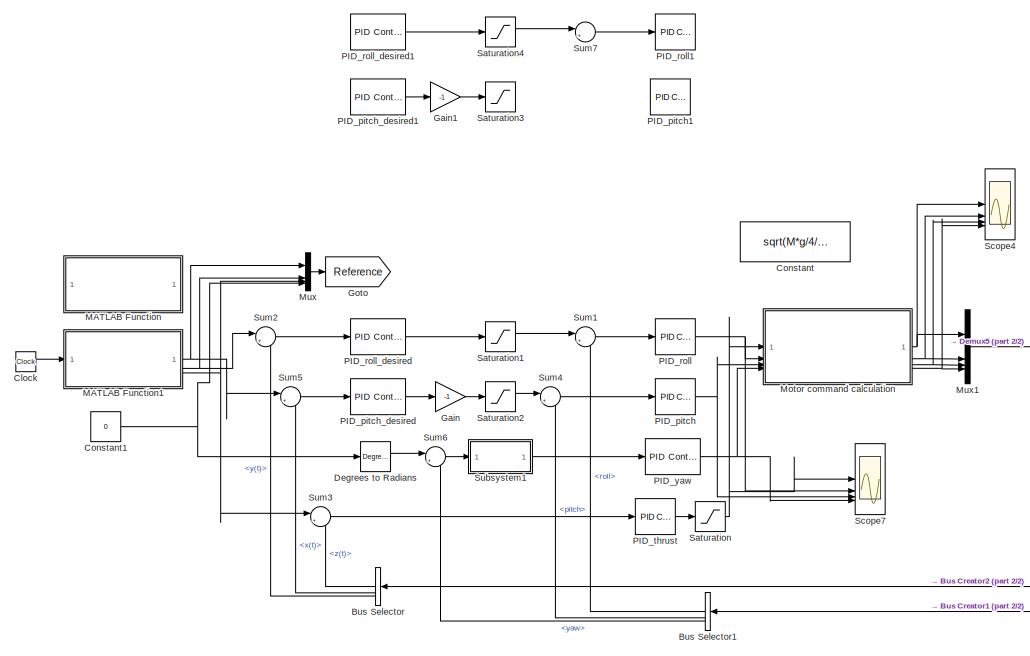
[diagram: root canvas - part 1/2, left side, full height]
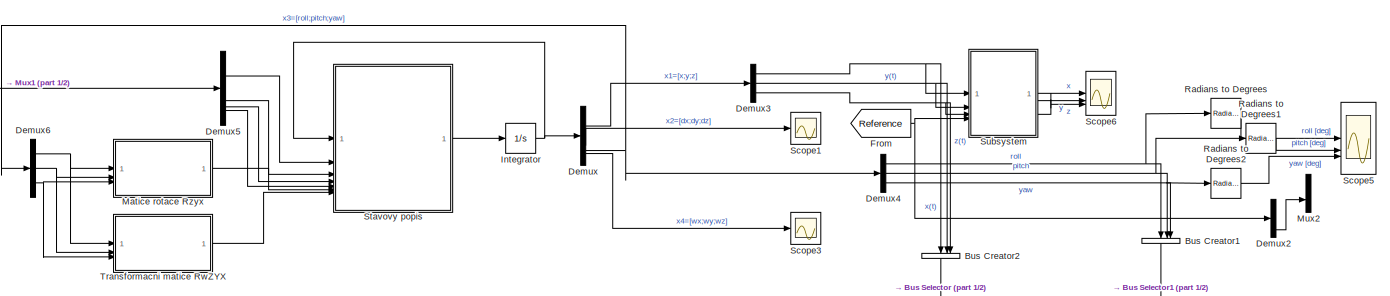
[diagram: root canvas - part 2/2, middle right region]
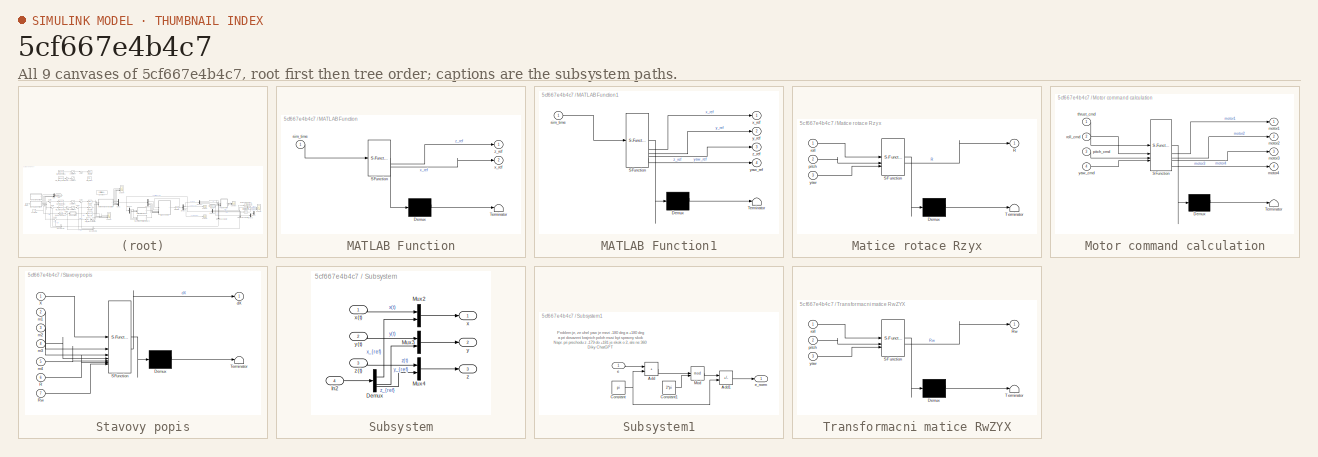
[diagram: thumbnail index - all 9 canvases of the model, root first then tree order]
MODEL slx_5cf667e4b4c7
KIND model
CONFIG AbsTol = auto
CONFIG EnableMultiTasking = off
CONFIG FixedStep = 0.01
CONFIG MaxStep = auto
CONFIG MinStep = auto
CONFIG RelTol = 1e-3
CONFIG SampleTimeConstraint = Unconstrained
CONFIG SolverName = ode4
CONFIG StartTime = 0.0
CONFIG StopTime = 40
BLOCK [BusCreator] Bus Creator1
  DisplayOption = bar
  InheritFromInputs = on
  Inputs = 3
  NameLocation = left
BLOCK [BusCreator] Bus Creator2
  DisplayOption = bar
  InheritFromInputs = on
  Inputs = 3
  NameLocation = left
BLOCK [BusSelector] Bus Selector
  NameLocation = top
  OutputSignals = z(t),x(t),y(t)
BLOCK [BusSelector] Bus Selector1
  NameLocation = left
  OutputSignals = roll,pitch,yaw
BLOCK [Clock] Clock
BLOCK [Constant] Constant
  Commented = on
  Value = sqrt(M*g/4/k_thrust)
BLOCK [Constant] Constant1
  Value = 0
BLOCK [Reference] Degrees to Radians  REF=simulink_extras/Transformations/Degrees to
Radians
  SourceBlock = simulink_extras/Transformations/Degrees to\nRadians
  SourceType = DegreesToRadians
BLOCK [Demux] Demux
BLOCK [Demux] Demux2
BLOCK [Demux] Demux3
  Outputs = 3
BLOCK [Demux] Demux4
  Outputs = 3
BLOCK [Demux] Demux5
BLOCK [Demux] Demux6
  Outputs = 3
BLOCK [From] From
  GotoTag = Reference
BLOCK [Gain] Gain
  Gain = -1
BLOCK [Gain] Gain1
  Commented = on
  Gain = -1
BLOCK [Goto] Goto
  GotoTag = Reference
BLOCK [Integrator] Integrator
  InitialCondition = Xinit
BLOCK [SubSystem] MATLAB Function
  Commented = on
  ErrorFcn = Stateflow.Translate.translate
  PermitHierarchicalResolution = ExplicitOnly
  SFBlockType = MATLAB Function
  TreatAsAtomicUnit = on
BLOCK [Demux] MATLAB Function/ Demux 
  Outputs = 1
BLOCK [S-Function] MATLAB Function/ SFunction 
  EnableBusSupport = on
  FunctionName = sf_sfun
  PortCounts = [1 3]
  SFcnIsStateOwnerBlock = off
  SFunctionDeploymentMode = off
  Tag = Stateflow S-Function 4
BLOCK [Terminator] MATLAB Function/ Terminator 
BLOCK [Inport] MATLAB Function/sim_time
BLOCK [Outport] MATLAB Function/x_ref
  Port = 2
BLOCK [Outport] MATLAB Function/z_ref
BLOCK [SubSystem] MATLAB Function1
  ErrorFcn = Stateflow.Translate.translate
  PermitHierarchicalResolution = ExplicitOnly
  SFBlockType = MATLAB Function
  TreatAsAtomicUnit = on
BLOCK [Demux] MATLAB Function1/ Demux 
  Outputs = 1
BLOCK [S-Function] MATLAB Function1/ SFunction 
  EnableBusSupport = on
  FunctionName = sf_sfun
  PortCounts = [1 5]
  SFcnIsStateOwnerBlock = off
  SFunctionDeploymentMode = off
  Tag = Stateflow S-Function 5
BLOCK [Terminator] MATLAB Function1/ Terminator 
BLOCK [Inport] MATLAB Function1/sim_time
BLOCK [Outport] MATLAB Function1/x_ref
BLOCK [Outport] MATLAB Function1/y_ref
  Port = 2
BLOCK [Outport] MATLAB Function1/yaw_ref
  Port = 4
BLOCK [Outport] MATLAB Function1/z_ref
  Port = 3
BLOCK [SubSystem] Matice rotace Rzyx
  ErrorFcn = Stateflow.Translate.translate
  PermitHierarchicalResolution = ExplicitOnly
  SFBlockType = MATLAB Function
  TreatAsAtomicUnit = on
BLOCK [Demux] Matice rotace Rzyx/ Demux 
  Outputs = 1
BLOCK [S-Function] Matice rotace Rzyx/ SFunction 
  EnableBusSupport = on
  FunctionName = sf_sfun
  PortCounts = [3 2]
  SFcnIsStateOwnerBlock = off
  SFunctionDeploymentMode = off
  Tag = Stateflow S-Function 1
BLOCK [Terminator] Matice rotace Rzyx/ Terminator 
BLOCK [Outport] Matice rotace Rzyx/R
BLOCK [Inport] Matice rotace Rzyx/pitch
  Port = 2
BLOCK [Inport] Matice rotace Rzyx/roll
BLOCK [Inport] Matice rotace Rzyx/yaw
  Port = 3
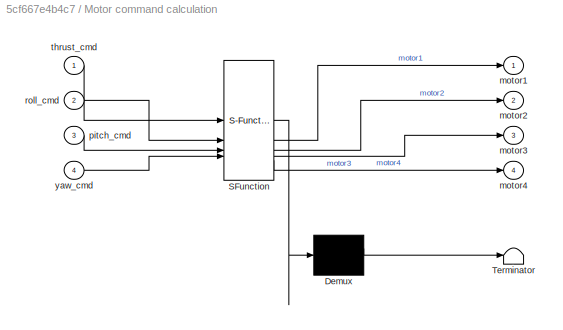
BLOCK [SubSystem] Motor command calculation
  ErrorFcn = Stateflow.Translate.translate
  PermitHierarchicalResolution = ExplicitOnly
  SFBlockType = MATLAB Function
  TreatAsAtomicUnit = on
BLOCK [Demux] Motor command calculation/ Demux 
  Outputs = 1
BLOCK [S-Function] Motor command calculation/ SFunction 
  EnableBusSupport = on
  FunctionName = sf_sfun
  PortCounts = [4 5]
  SFcnIsStateOwnerBlock = off
  SFunctionDeploymentMode = off
  Tag = Stateflow S-Function 6
BLOCK [Terminator] Motor command calculation/ Terminator 
BLOCK [Outport] Motor command calculation/motor1
BLOCK [Outport] Motor command calculation/motor2
  Port = 2
BLOCK [Outport] Motor command calculation/motor3
  Port = 3
BLOCK [Outport] Motor command calculation/motor4
  Port = 4
BLOCK [Inport] Motor command calculation/pitch_cmd
  Port = 3
BLOCK [Inport] Motor command calculation/roll_cmd
  Port = 2
BLOCK [Inport] Motor command calculation/thrust_cmd
BLOCK [Inport] Motor command calculation/yaw_cmd
  Port = 4
BLOCK [Mux] Mux
  DisplayOption = bar
BLOCK [Mux] Mux1
  DisplayOption = bar
BLOCK [Mux] Mux2
  DisplayOption = bar
  Inputs = 2
BLOCK [Reference] PID_pitch  REF=slpidlib/PID Controller
  LibrarySourceBlock = simulink/Continuous/PID Controller
  SourceBlock = slpidlib/PID Controller
  SourceType = PID 1dof
BLOCK [Reference] PID_pitch1  REF=slpidlib/PID Controller
  Commented = on
  LibrarySourceBlock = simulink/Continuous/PID Controller
  SourceBlock = slpidlib/PID Controller
  SourceType = PID 1dof
BLOCK [Reference] PID_pitch_desired  REF=slpidlib/PID Controller
  LibrarySourceBlock = simulink/Continuous/PID Controller
  SourceBlock = slpidlib/PID Controller
  SourceType = PID 1dof
BLOCK [Reference] PID_pitch_desired1  REF=slpidlib/PID Controller
  Commented = on
  LibrarySourceBlock = simulink/Continuous/PID Controller
  SourceBlock = slpidlib/PID Controller
  SourceType = PID 1dof
BLOCK [Reference] PID_roll  REF=slpidlib/PID Controller
  LibrarySourceBlock = simulink/Continuous/PID Controller
  SourceBlock = slpidlib/PID Controller
  SourceType = PID 1dof
BLOCK [Reference] PID_roll1  REF=slpidlib/PID Controller
  Commented = on
  LibrarySourceBlock = simulink/Continuous/PID Controller
  SourceBlock = slpidlib/PID Controller
  SourceType = PID 1dof
BLOCK [Reference] PID_roll_desired  REF=slpidlib/PID Controller
  LibrarySourceBlock = simulink/Continuous/PID Controller
  SourceBlock = slpidlib/PID Controller
  SourceType = PID 1dof
BLOCK [Reference] PID_roll_desired1  REF=slpidlib/PID Controller
  Commented = on
  LibrarySourceBlock = simulink/Continuous/PID Controller
  SourceBlock = slpidlib/PID Controller
  SourceType = PID 1dof
BLOCK [Reference] PID_thrust  REF=slpidlib/PID Controller
  LibrarySourceBlock = simulink/Continuous/PID Controller
  SourceBlock = slpidlib/PID Controller
  SourceType = PID 1dof
BLOCK [Reference] PID_yaw  REF=slpidlib/PID Controller
  LibrarySourceBlock = simulink/Continuous/PID Controller
  SourceBlock = slpidlib/PID Controller
  SourceType = PID 1dof
BLOCK [Reference] Radians to Degrees  REF=simulink_extras/Transformations/Radians
to Degrees
  SourceBlock = simulink_extras/Transformations/Radians\nto Degrees
  SourceType = RadiansToDegrees
BLOCK [Reference] Radians to Degrees1  REF=simulink_extras/Transformations/Radians
to Degrees
  SourceBlock = simulink_extras/Transformations/Radians\nto Degrees
  SourceType = RadiansToDegrees
BLOCK [Reference] Radians to Degrees2  REF=simulink_extras/Transformations/Radians
to Degrees
  SourceBlock = simulink_extras/Transformations/Radians\nto Degrees
  SourceType = RadiansToDegrees
BLOCK [Saturate] Saturation
  LowerLimit = 0
  UpperLimit = 20
BLOCK [Saturate] Saturation1
  LowerLimit = -pi/2
  UpperLimit = pi/2
BLOCK [Saturate] Saturation2
  LowerLimit = -pi/2
  UpperLimit = pi/2
BLOCK [Saturate] Saturation3
  Commented = on
  LowerLimit = -pi/2
  UpperLimit = pi/2
BLOCK [Saturate] Saturation4
  Commented = on
  LowerLimit = -pi/2
  UpperLimit = pi/2
BLOCK [Scope] Scope1
  Floating = off
  NumInputPorts = 1
  ScopeSpecificationString = Simulink.scopes.TimeScopeBlockCfg('CurrentConfiguration', extmgr.ConfigurationSet(extmgr.Configuration('Core','General UI',true),extmgr.Configuration('Core','Source UI',true),extmgr.Configuration('Sources','WiredSimulink',true,'DataLoggingVariableName','ScopeData1'),extmgr.Configuration('Visuals','Time Domain',true,'SerializedDisplays',{struct('MinYLimReal','-22.55347','MaxYLimReal','15.97128','YL...<+1528ch>
BLOCK [Scope] Scope3
  Floating = off
  NumInputPorts = 1
  ScopeSpecificationString = Simulink.scopes.TimeScopeBlockCfg('CurrentConfiguration', extmgr.ConfigurationSet(extmgr.Configuration('Core','General UI',true),extmgr.Configuration('Core','Source UI',true),extmgr.Configuration('Sources','WiredSimulink',true,'DataLoggingVariableName','ScopeData3'),extmgr.Configuration('Visuals','Time Domain',true,'SerializedDisplays',{struct('MinYLimReal','-0.7747','MaxYLimReal','0.73167','YLabe...<+1545ch>
BLOCK [Scope] Scope4
  Floating = off
  NumInputPorts = 4
  ScopeSpecificationString = Simulink.scopes.TimeScopeBlockCfg('CurrentConfiguration', extmgr.ConfigurationSet(extmgr.Configuration('Core','General UI',true),extmgr.Configuration('Core','Source UI',true),extmgr.Configuration('Sources','WiredSimulink',true,'DataLoggingVariableName','ScopeData5'),extmgr.Configuration('Visuals','Time Domain',true,'SerializedDisplays',{struct('MinYLimReal','-2.50003','MaxYLimReal','22.50003','YLa...<+1749ch>
BLOCK [Scope] Scope5
  Floating = off
  NumInputPorts = 3
  ScopeSpecificationString = Simulink.scopes.TimeScopeBlockCfg('CurrentConfiguration', extmgr.ConfigurationSet(extmgr.Configuration('Core','General UI',true),extmgr.Configuration('Core','Source UI',true),extmgr.Configuration('Sources','WiredSimulink',true,'DataLoggingVariableName','ScopeData6'),extmgr.Configuration('Visuals','Time Domain',true,'PlotType','Stairs','SerializedDisplays',{struct('MinYLimReal','-75.25604','MaxYLim...<+1647ch>
BLOCK [Scope] Scope6
  Floating = off
  NumInputPorts = 3
  ScopeSpecificationString = Simulink.scopes.TimeScopeBlockCfg('CurrentConfiguration', extmgr.ConfigurationSet(extmgr.Configuration('Core','General UI',true,'FigureColor',[0 0 0]),extmgr.Configuration('Core','Source UI',true),extmgr.Configuration('Sources','WiredSimulink',true,'DataLoggingVariableName','ScopeData7'),extmgr.Configuration('Visuals','Time Domain',true,'PlotType','Stairs','SerializedDisplays',{struct('MinYLimReal...<+3511ch>
BLOCK [Scope] Scope7
  Floating = off
  NumInputPorts = 4
  ScopeSpecificationString = Simulink.scopes.TimeScopeBlockCfg('CurrentConfiguration', extmgr.ConfigurationSet(extmgr.Configuration('Core','General UI',true),extmgr.Configuration('Core','Source UI',true),extmgr.Configuration('Sources','WiredSimulink',true,'DataLoggingVariableName','ScopeData8'),extmgr.Configuration('Visuals','Time Domain',true,'SerializedDisplays',{struct('MinYLimReal','-2.50002','MaxYLimReal','22.5','YLabelR...<+1639ch>
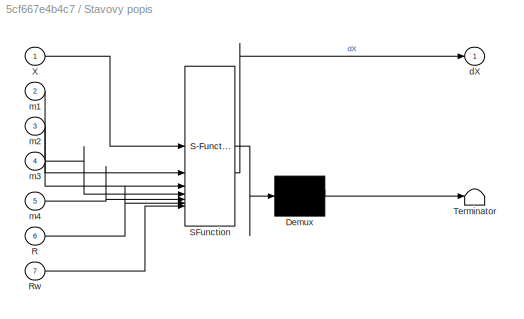
BLOCK [SubSystem] Stavovy popis
  ErrorFcn = Stateflow.Translate.translate
  PermitHierarchicalResolution = ExplicitOnly
  SFBlockType = MATLAB Function
  TreatAsAtomicUnit = on
BLOCK [Demux] Stavovy popis/ Demux 
  Outputs = 1
BLOCK [S-Function] Stavovy popis/ SFunction 
  EnableBusSupport = on
  FunctionName = sf_sfun
  Parameters = I,L,M,b_moment,g,k,k_thrust
  PortCounts = [7 2]
  SFcnIsStateOwnerBlock = off
  SFunctionDeploymentMode = off
  Tag = Stateflow S-Function 2
BLOCK [Terminator] Stavovy popis/ Terminator 
BLOCK [Inport] Stavovy popis/R
  Port = 6
BLOCK [Inport] Stavovy popis/Rw
  Port = 7
BLOCK [Inport] Stavovy popis/X
BLOCK [Outport] Stavovy popis/dX
BLOCK [Inport] Stavovy popis/m1
  Port = 2
BLOCK [Inport] Stavovy popis/m2
  Port = 3
BLOCK [Inport] Stavovy popis/m3
  Port = 4
BLOCK [Inport] Stavovy popis/m4
  Port = 5
BLOCK [SubSystem] Subsystem
BLOCK [Demux] Subsystem/Demux
BLOCK [Inport] Subsystem/In2
  Port = 4
BLOCK [Mux] Subsystem/Mux2
  DisplayOption = bar
  Inputs = 2
BLOCK [Mux] Subsystem/Mux3
  DisplayOption = bar
  Inputs = 2
BLOCK [Mux] Subsystem/Mux4
  DisplayOption = bar
  Inputs = 2
BLOCK [Outport] Subsystem/x
BLOCK [Inport] Subsystem/x(t)
BLOCK [Outport] Subsystem/y
  Port = 2
BLOCK [Inport] Subsystem/y(t)
  Port = 2
BLOCK [Outport] Subsystem/z
  Port = 3
BLOCK [Inport] Subsystem/z(t)
  Port = 3
BLOCK [SubSystem] Subsystem1
BLOCK [Sum] Subsystem1/Add
  IconShape = rectangular
BLOCK [Sum] Subsystem1/Add1
  IconShape = rectangular
  Inputs = +-
BLOCK [Constant] Subsystem1/Constant
  Value = pi
BLOCK [Constant] Subsystem1/Constant1
  Value = 2*pi
BLOCK [Math] Subsystem1/Mod
  Operator = mod
BLOCK [Inport] Subsystem1/e
BLOCK [Outport] Subsystem1/e_norm
BLOCK [Sum] Sum1
  Inputs = |+-
BLOCK [Sum] Sum2
  Inputs = |+-
BLOCK [Sum] Sum3
  Inputs = |+-
BLOCK [Sum] Sum4
  Inputs = |+-
BLOCK [Sum] Sum5
  Inputs = |+-
BLOCK [Sum] Sum6
  Inputs = |+-
BLOCK [Sum] Sum7
  Commented = on
  Inputs = |+-
BLOCK [SubSystem] Transformacni matice RwZYX
  ErrorFcn = Stateflow.Translate.translate
  PermitHierarchicalResolution = ExplicitOnly
  SFBlockType = MATLAB Function
  TreatAsAtomicUnit = on
BLOCK [Demux] Transformacni matice RwZYX/ Demux 
  Outputs = 1
BLOCK [S-Function] Transformacni matice RwZYX/ SFunction 
  EnableBusSupport = on
  FunctionName = sf_sfun
  PortCounts = [3 2]
  SFcnIsStateOwnerBlock = off
  SFunctionDeploymentMode = off
  Tag = Stateflow S-Function 3
BLOCK [Terminator] Transformacni matice RwZYX/ Terminator 
BLOCK [Outport] Transformacni matice RwZYX/Rw
BLOCK [Inport] Transformacni matice RwZYX/pitch
  Port = 2
BLOCK [Inport] Transformacni matice RwZYX/roll
BLOCK [Inport] Transformacni matice RwZYX/yaw
  Port = 3
ANNOTATION Subsystem1: Problem je, ze uhel yaw je mezi -180 deg a +180 deg a pri dosazeni krajnich poloh musi byt spravny skok Napr. pri prechodu z -179 do +181 je skok o 2, ale ne 360 Diky ChatGPT
LINE Bus Creator1:1 -> Bus Selector1:1
LINE Bus Creator2:1 -> Bus Selector:1
LINE Bus Selector1:1 -> Sum1:2
LINE Bus Selector1:2 -> Sum4:2
LINE Bus Selector1:3 -> Sum6:2
LINE Bus Selector:1 -> Sum3:2
LINE Bus Selector:2 -> Sum5:2
LINE Bus Selector:3 -> Sum2:2
LINE Clock:1 -> MATLAB Function1:1
NET Constant1:1 -> Degrees to Radians:1, Mux:4
LINE Degrees to Radians:1 -> Sum6:1
LINE Demux2:4 -> Mux2:2
NET Demux3:1 -> Bus Creator2:1, Subsystem:1
NET Demux3:2 -> Bus Creator2:2, Subsystem:2
NET Demux3:3 -> Bus Creator2:3, Subsystem:3
NET Demux4:1 -> Bus Creator1:1, Radians to Degrees:1
NET Demux4:2 -> Bus Creator1:2, Radians to Degrees1:1
NET Demux4:3 -> Bus Creator1:3, Radians to Degrees2:1
LINE Demux5:1 -> Stavovy popis:2
LINE Demux5:2 -> Stavovy popis:3
LINE Demux5:3 -> Stavovy popis:4
LINE Demux5:4 -> Stavovy popis:5
NET Demux6:1 -> Matice rotace Rzyx:1, Transformacni matice RwZYX:1
NET Demux6:2 -> Matice rotace Rzyx:2, Transformacni matice RwZYX:2
NET Demux6:3 -> Matice rotace Rzyx:3, Transformacni matice RwZYX:3
LINE Demux:1 -> Demux3:1
LINE Demux:2 -> Scope1:1
NET Demux:3 -> Demux4:1, Demux6:1
LINE Demux:4 -> Scope3:1
NET From:1 -> Demux2:1, Subsystem:4
LINE Gain1:1 -> Saturation3:1
LINE Gain:1 -> Saturation2:1
NET Integrator:1 -> Demux:1, Stavovy popis:1
NET MATLAB Function1:1 -> Mux:1, Sum5:1
NET MATLAB Function1:2 -> Mux:2, Sum2:1
NET MATLAB Function1:3 -> Mux:3, Sum3:1
LINE Matice rotace Rzyx:1 -> Stavovy popis:6
NET Motor command calculation:1 -> Mux1:1, Scope4:1
NET Motor command calculation:2 -> Mux1:2, Scope4:2
NET Motor command calculation:3 -> Mux1:3, Scope4:3
NET Motor command calculation:4 -> Mux1:4, Scope4:4
LINE Mux1:1 -> Demux5:1
LINE Mux:1 -> Goto:1
NET PID_pitch:1 -> Motor command calculation:3, Scope7:3
LINE PID_pitch_desired1:1 -> Gain1:1
LINE PID_pitch_desired:1 -> Gain:1
NET PID_roll:1 -> Motor command calculation:2, Scope7:2
LINE PID_roll_desired1:1 -> Saturation4:1
LINE PID_roll_desired:1 -> Saturation1:1
LINE PID_thrust:1 -> Saturation:1
NET PID_yaw:1 -> Motor command calculation:4, Scope7:4
LINE Radians to Degrees1:1 -> Scope5:2
LINE Radians to Degrees2:1 -> Scope5:3
LINE Radians to Degrees:1 -> Scope5:1
LINE Saturation1:1 -> Sum1:1
LINE Saturation2:1 -> Sum4:1
LINE Saturation4:1 -> Sum7:1
NET Saturation:1 -> Motor command calculation:1, Scope7:1
LINE Stavovy popis:1 -> Integrator:1
LINE Subsystem/Demux:1 -> Subsystem/Mux2:2
LINE Subsystem/Demux:2 -> Subsystem/Mux3:2
LINE Subsystem/Demux:3 -> Subsystem/Mux4:2
LINE Subsystem/In2:1 -> Subsystem/Demux:1
LINE Subsystem/Mux2:1 -> Subsystem/x:1
LINE Subsystem/Mux3:1 -> Subsystem/y:1
LINE Subsystem/Mux4:1 -> Subsystem/z:1
LINE Subsystem/x(t):1 -> Subsystem/Mux2:1
LINE Subsystem/y(t):1 -> Subsystem/Mux3:1
LINE Subsystem/z(t):1 -> Subsystem/Mux4:1
LINE Subsystem1/Add1:1 -> Subsystem1/e_norm:1
LINE Subsystem1/Add:1 -> Subsystem1/Mod:1
LINE Subsystem1/Constant1:1 -> Subsystem1/Mod:2
NET Subsystem1/Constant:1 -> Subsystem1/Add1:2, Subsystem1/Add:2
LINE Subsystem1/Mod:1 -> Subsystem1/Add1:1
LINE Subsystem1/e:1 -> Subsystem1/Add:1
LINE Subsystem1:1 -> PID_yaw:1
LINE Subsystem:1 -> Scope6:1
LINE Subsystem:2 -> Scope6:2
LINE Subsystem:3 -> Scope6:3
LINE Sum1:1 -> PID_roll:1
LINE Sum2:1 -> PID_roll_desired:1
LINE Sum3:1 -> PID_thrust:1
LINE Sum4:1 -> PID_pitch:1
LINE Sum5:1 -> PID_pitch_desired:1
LINE Sum6:1 -> Subsystem1:1
LINE Sum7:1 -> PID_roll1:1
LINE Transformacni matice RwZYX:1 -> Stavovy popis:7
note: NET lines group one-source signal fan-out (src -> all destinations, sorted); 1:1 wires keep LINE
CHART Matice rotace Rzyx states=1 transitions=1
  STATE_LABEL 'eML_blk_kernel()'
  STATE_LABEL 'SCRIPT:\nfunction R = fcn(roll, pitch, yaw)\n% Prepocet matice rotace R=Rx*Ry*Rz\n\nR_x = [1, 0, 0; \n       0, cos(roll), -sin(roll);\n       0, sin(roll), cos(roll)];\n\nR_y = [cos(pitch), 0, sin(pitch); \n       0, 1, 0; \n      -sin(pitch), 0, cos(pitch)];\n\nR_z = [cos(yaw), -sin(yaw), 0; \n       sin(yaw), cos(yaw), 0; \n       0, 0, 1];\n\nR = R_z * R_y * R_x;\n'
CHART Stavovy popis states=1 transitions=1
  STATE_LABEL 'eML_blk_kernel()'
  STATE_LABEL 'SCRIPT:\nfunction dX  = fcn(X, m1, m2, m3, m4, R, Rw, k_thrust, k, I, g, M, L, b_moment)\n% m1, m2, m3, m4 jsou odpovidajici uhlove rychlosti rotoru\n% Stavovy popis\n% x1 - pozice dronu v prostoru, [x;y;z]\n% x2 - linearni rychlost, [dx;dy;dz]\n% x3 - Eulerove uhly, [roll;pitch;yaw]\n% x4 - vektor uhlovych rychlosti, [wx;wy;wz]\nx1 = X(1:3);\nx2 = X(4:6);\nx3 = X(7:9);\nx4 = X(10:12);\n\nThrust = k_thrust*(m1...<+437ch>'
CHART Transformacni matice RwZYX states=1 transitions=1
  STATE_LABEL 'eML_blk_kernel()'
  STATE_LABEL 'SCRIPT:\nfunction Rw = fcn(roll, pitch, yaw)\n% Prepocet matice pro transformace derivaci Eulerovych uhlu \n% do uhlove rychlosti v soustave tela\nRw = [1, 0, -sin(pitch);\n      0, cos(roll), cos(pitch)*sin(roll);\n      0 -sin(roll), cos(pitch)*cos(roll)];\n'
CHART MATLAB Function states=1 transitions=1
  STATE_LABEL 'eML_blk_kernel()'
  STATE_LABEL 'SCRIPT:\nfunction [z_ref, x_ref] = fcn(sim_time)\nif sim_time < 10\n    z_ref = 8;\n    x_ref = 0;\nelseif sim_time < 20\n    z_ref = 15;\n    x_ref = 10;\nelseif sim_time < 25\n    z_ref = 8;\n    x_ref = 10;\nelseif sim_time < 30\n    z_ref = 10;\n    x_ref = -5;\nelseif sim_time < 40\n    z_ref = 12;\n    x_ref = -5;\nelse\n    x_ref = 0;\n    z_ref = 10;\nend\n'
CHART MATLAB Function1 states=1 transitions=1
  STATE_LABEL 'eML_blk_kernel()'
  STATE_LABEL 'SCRIPT:\nfunction [x_ref, y_ref, z_ref, yaw_ref] = fcn(sim_time)\nif sim_time < 10\n    z_ref = 8;\n    x_ref = 0;\n    y_ref = 0;\n    yaw_ref = 0;\nelseif sim_time < 20\n    z_ref = 15;\n    x_ref = 10;\n    y_ref = 0;\n    yaw_ref = 45;\nelseif sim_time < 25\n    z_ref = 8;\n    x_ref = 10;\n    y_ref = -5;\n    yaw_ref = -45;\nelseif sim_time < 30\n    z_ref = 10;\n    x_ref = -5;\n    y_ref = -10;\n    yaw_ref = ...<+215ch>'
CHART Motor command calculation states=1 transitions=1
  STATE_LABEL 'eML_blk_kernel()'
  STATE_LABEL 'SCRIPT:\nfunction [motor1, motor2, motor3, motor4] = fcn(thrust_cmd, roll_cmd, pitch_cmd, yaw_cmd)\n\nmotor1 = thrust_cmd+roll_cmd-pitch_cmd+yaw_cmd;\nmotor2 = thrust_cmd-roll_cmd-pitch_cmd-yaw_cmd;\nmotor3 = thrust_cmd-roll_cmd+pitch_cmd+yaw_cmd;\nmotor4 = thrust_cmd+roll_cmd+pitch_cmd-yaw_cmd;'
CHART  states=0 transitions=0
CHART  states=0 transitions=0
CHART  states=0 transitions=0
CHART  states=0 transitions=0
CHART  states=0 transitions=0
CHART  states=0 transitions=0
